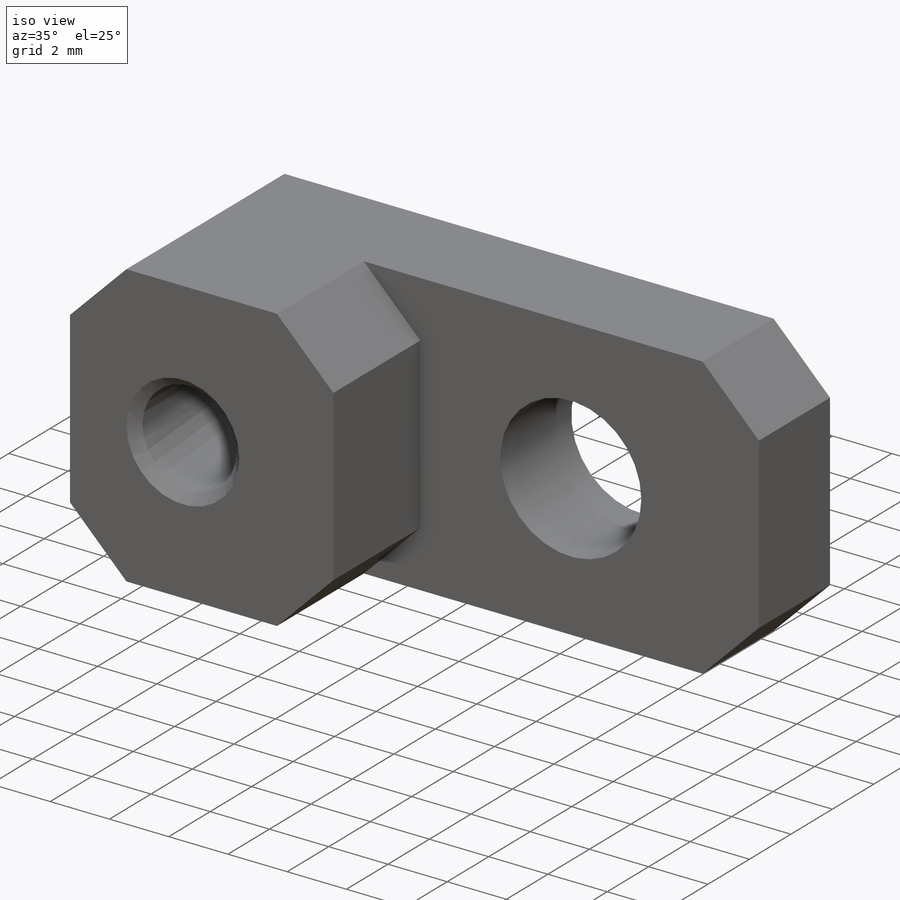
[diagram: iso view]
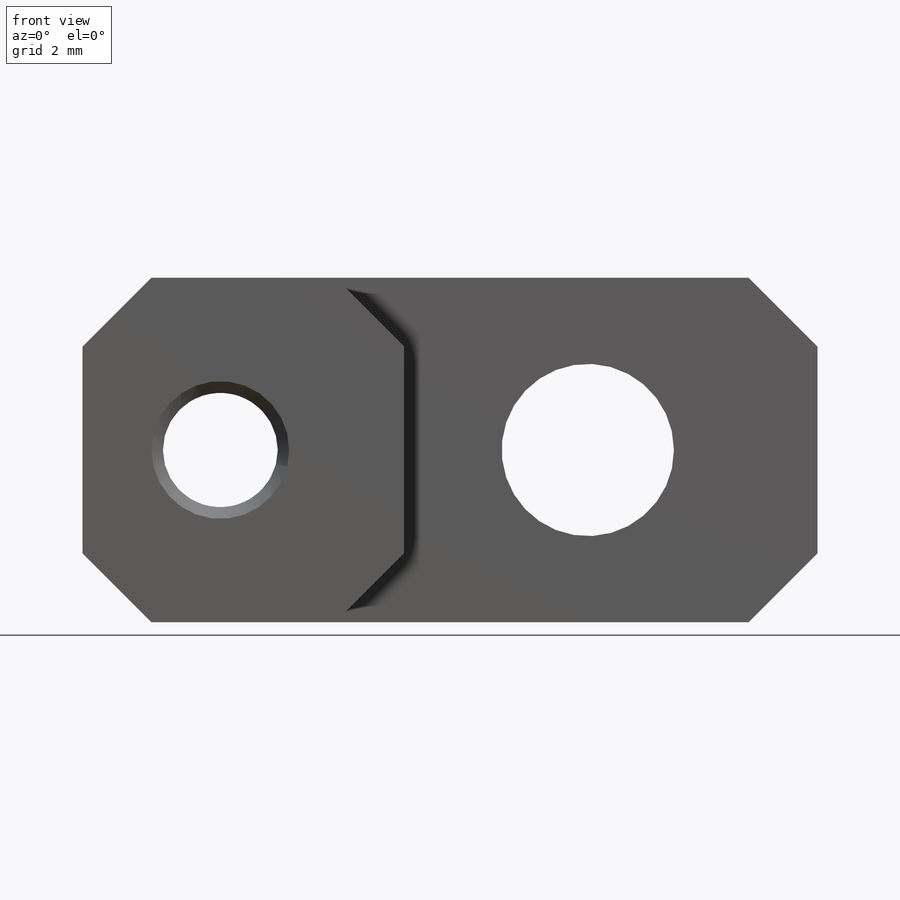
[diagram: front view]
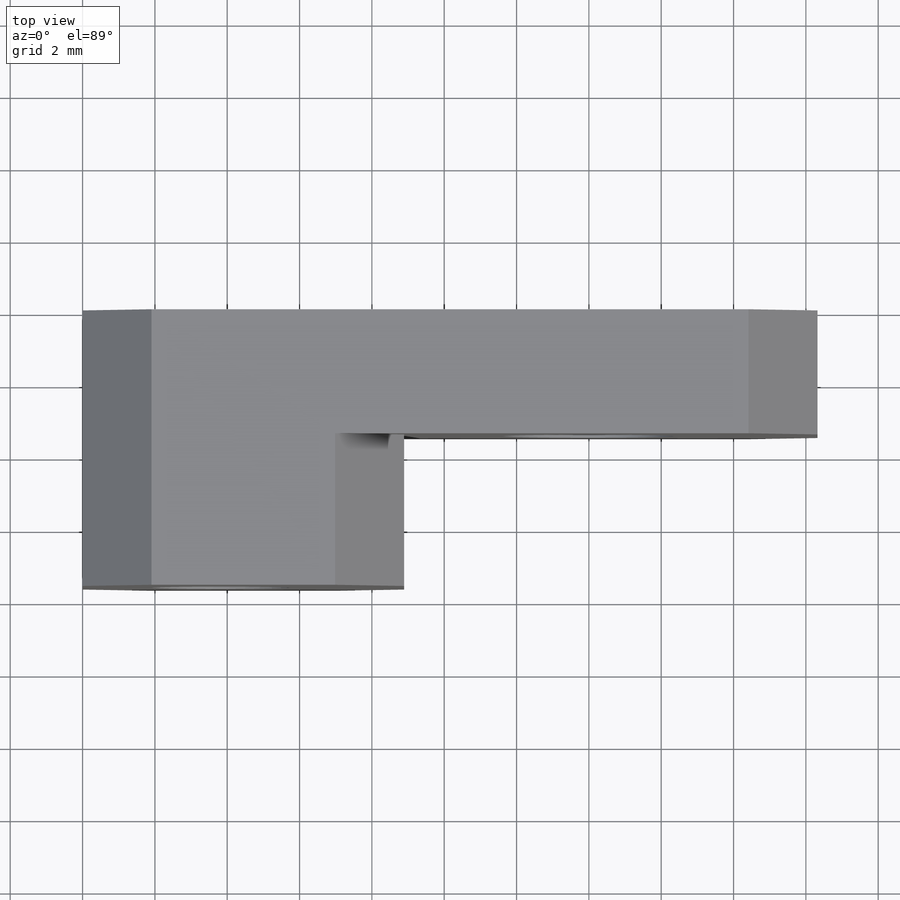
[diagram: top view]
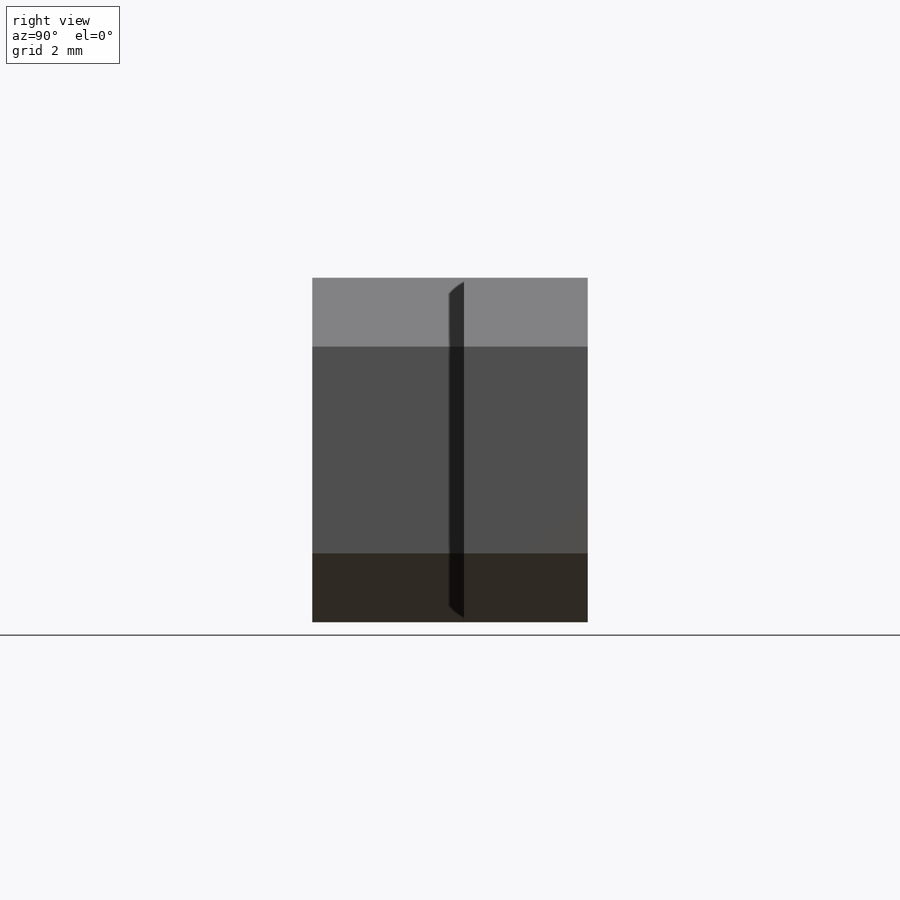
[diagram: right view]
SOLIDWORKS PART (.sldprt)
format: sldprt  version: not decoded by parser v0  size: 258,048 bytes
history: native  units: mm
features: sketch x6, hole x2, material x1, extrude x1, cut_extrude x1, chamfer x1 + 1 further entry (+13 scaffold rows collapsed)
feature tree (26):
  scaffold x13  (default folders/planes/origin — collapsed)
  material  "6061-T6 Al"
  "Origin"  ID=-1
  sketch  "Sketch1"  dims[c1.D3=~3.096801mm c1.D4=~3.096801mm c1.D5=~3.17246mm c1.D6=2.54mm c1.D1=~13.222093mm c1.D2=~28.681771mm c2.D1=20.32mm c2.D2=9.525mm c2.D3=10.16mm c2.D4=3.81mm]
  extrude  "Extrude1"  Depth=7.62mm
  hole  "3/16 (0.1875) Diameter Hole1"  Diameter=4.7625mm Depth=7.62mm
  sketch  "Sketch3"  dims[D1=13.97mm]
  sketch  "Sketch2"  dims[hole-wizard template sketch: 60 standard entries collapsed; hole parameters kept: c18.Thru Hole Depth=7.62mm]
  sketch  "Sketch4"  dims[D2=8.89mm D1=0.0mm]
  cut_extrude  "Extrude2"  Depth=4.191mm
  chamfer  "Chamfer1"  Distance=1.905mm Angle=45deg
  hole  "CBORE for #4 Socket Head Cap Screw1"  Diameter=3.175mm Depth=7.62mm
  sketch  "Sketch6"  dims[D1=10.16mm]
  sketch  "Sketch5"  dims[hole-wizard template sketch: 41 standard entries collapsed; hole parameters kept: c12.Thru Hole Dia.=3.175mm c12.Thru Hole Depth=7.62mm c12.C'Bore Dia.=3.2004mm c12.C'Bore Depth=1.524mm c12.Near C'Sink Dia.=3.81mm c12.D6=~4.399409mm c12.Near C'Sink Angle=90.0deg c12.Far C'Sink Dia.=3.81mm c12.D8=~2.963249mm c12.Far C'Sink Angle=90.0deg]
decode coverage: 11 of 11 modeling features carry decoded parameters; 1 rows unclassified (native names shown)
note: ~ marks probable driven/reference dimensions
note: suppression state not decoded; provenance and decode notes live in map.json
